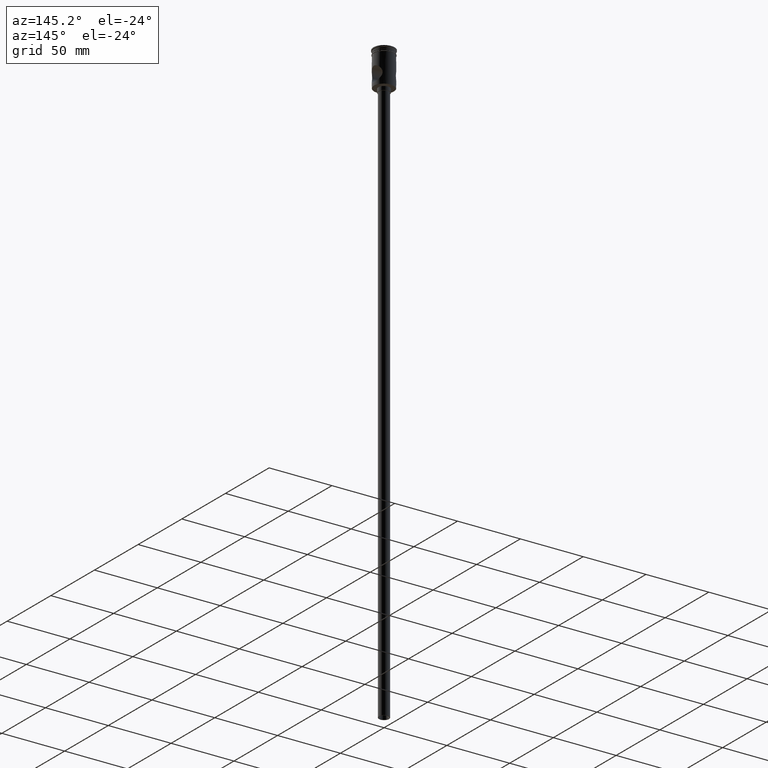
[diagram: clean part render]
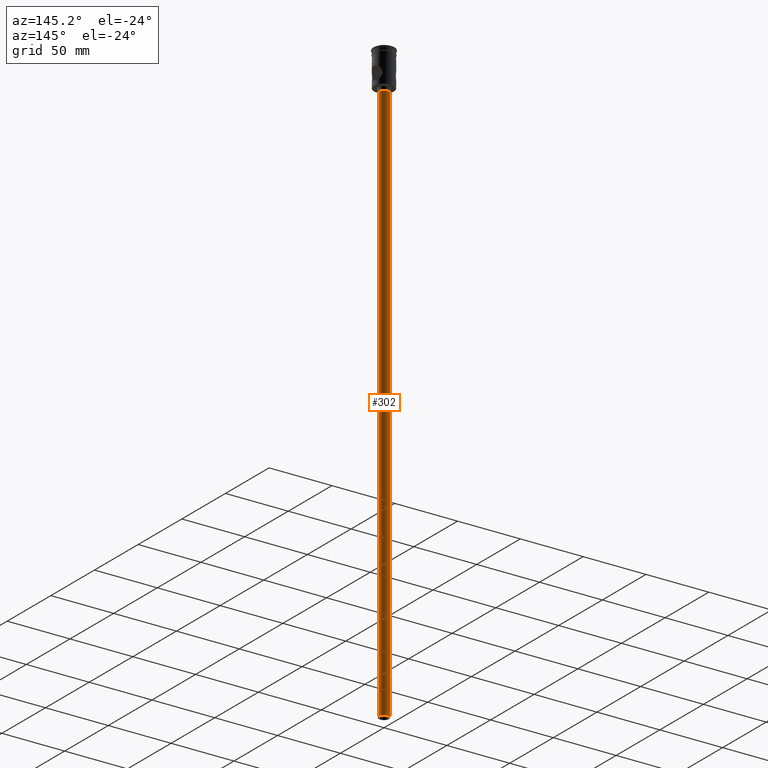
[diagram: same view with one face highlighted and labeled with its STEP entity id]
A machine part, auxiliary view. The second image highlights one B-rep face of the part: STEP entity #302.
In plain terms, the highlighted cylindrical surface (edge-blend (fillet) strip) has radius 4 mm, axis along (-0, -0, 1).
Its self-contained STEP definition (entity closure, byte-faithful):
#6 = AXIS2_PLACEMENT_3D ( 'NONE', #45, #1439, #1303 ) ;
#12 = DIRECTION ( 'NONE',  ( -1.000000000000000000, 0.000000000000000000, 0.000000000000000000 ) ) ;
#45 = CARTESIAN_POINT ( 'NONE',  ( 0.000000000000000000, 0.000000000000000000, -477.5000000000000568 ) ) ;
#207 = ORIENTED_EDGE ( 'NONE', *, *, #1291, .F. ) ;
#219 = CARTESIAN_POINT ( 'NONE',  ( 4.000000000000000000, 0.000000000000000000, -30.50000000000000000 ) ) ;
#228 = VECTOR ( 'NONE', #606, 1000.000000000000000 ) ;
#302 = ADVANCED_FACE ( 'NONE', ( #632 ), #1207, .T. ) ;
#366 = ORIENTED_EDGE ( 'NONE', *, *, #535, .F. ) ;
#382 = CIRCLE ( 'NONE', #579, 4.000000000000000000 ) ;
#469 = LINE ( 'NONE', #935, #228 ) ;
#503 = EDGE_LOOP ( 'NONE', ( #207, #724, #1344, #366 ) ) ;
#511 = DIRECTION ( 'NONE',  ( 0.000000000000000000, 0.000000000000000000, -1.000000000000000000 ) ) ;
#535 = EDGE_CURVE ( 'NONE', #1322, #855, #469, .T. ) ;
#569 = CARTESIAN_POINT ( 'NONE',  ( 0.000000000000000000, 0.000000000000000000, -477.5000000000000568 ) ) ;
#579 = AXIS2_PLACEMENT_3D ( 'NONE', #569, #684, #936 ) ;
#606 = DIRECTION ( 'NONE',  ( -0.000000000000000000, -0.000000000000000000, 1.000000000000000000 ) ) ;
#632 = FACE_OUTER_BOUND ( 'NONE', #503, .T. ) ;
#678 = CARTESIAN_POINT ( 'NONE',  ( 4.000000000000000000, 0.000000000000000000, -477.5000000000000568 ) ) ;
#684 = DIRECTION ( 'NONE',  ( 0.000000000000000000, 0.000000000000000000, -1.000000000000000000 ) ) ;
#724 = ORIENTED_EDGE ( 'NONE', *, *, #1345, .T. ) ;
#795 = CIRCLE ( 'NONE', #996, 4.000000000000000000 ) ;
#847 = VECTOR ( 'NONE', #1493, 1000.000000000000000 ) ;
#855 = VERTEX_POINT ( 'NONE', #219 ) ;
#914 = CARTESIAN_POINT ( 'NONE',  ( -4.000000000000000000, 4.898587196589412829E-16, -30.50000000000000000 ) ) ;
#935 = CARTESIAN_POINT ( 'NONE',  ( 4.000000000000000000, 0.000000000000000000, -477.5000000000000568 ) ) ;
#936 = DIRECTION ( 'NONE',  ( -1.000000000000000000, 0.000000000000000000, 0.000000000000000000 ) ) ;
#945 = LINE ( 'NONE', #1409, #847 ) ;
#996 = AXIS2_PLACEMENT_3D ( 'NONE', #1093, #511, #12 ) ;
#1009 = EDGE_CURVE ( 'NONE', #1195, #855, #795, .T. ) ;
#1093 = CARTESIAN_POINT ( 'NONE',  ( 0.000000000000000000, 0.000000000000000000, -30.50000000000000000 ) ) ;
#1195 = VERTEX_POINT ( 'NONE', #914 ) ;
#1207 = CYLINDRICAL_SURFACE ( 'NONE', #6, 4.000000000000000000 ) ;
#1291 = EDGE_CURVE ( 'NONE', #1450, #1322, #382, .T. ) ;
#1303 = DIRECTION ( 'NONE',  ( 1.000000000000000000, 0.000000000000000000, 0.000000000000000000 ) ) ;
#1322 = VERTEX_POINT ( 'NONE', #678 ) ;
#1344 = ORIENTED_EDGE ( 'NONE', *, *, #1009, .T. ) ;
#1345 = EDGE_CURVE ( 'NONE', #1450, #1195, #945, .T. ) ;
#1354 = CARTESIAN_POINT ( 'NONE',  ( -4.000000000000000000, 4.898587196589412829E-16, -477.5000000000000568 ) ) ;
#1409 = CARTESIAN_POINT ( 'NONE',  ( -4.000000000000000000, 4.898587196589412829E-16, -477.5000000000000568 ) ) ;
#1439 = DIRECTION ( 'NONE',  ( -0.000000000000000000, -0.000000000000000000, 1.000000000000000000 ) ) ;
#1450 = VERTEX_POINT ( 'NONE', #1354 ) ;
#1493 = DIRECTION ( 'NONE',  ( -0.000000000000000000, -0.000000000000000000, 1.000000000000000000 ) ) ;